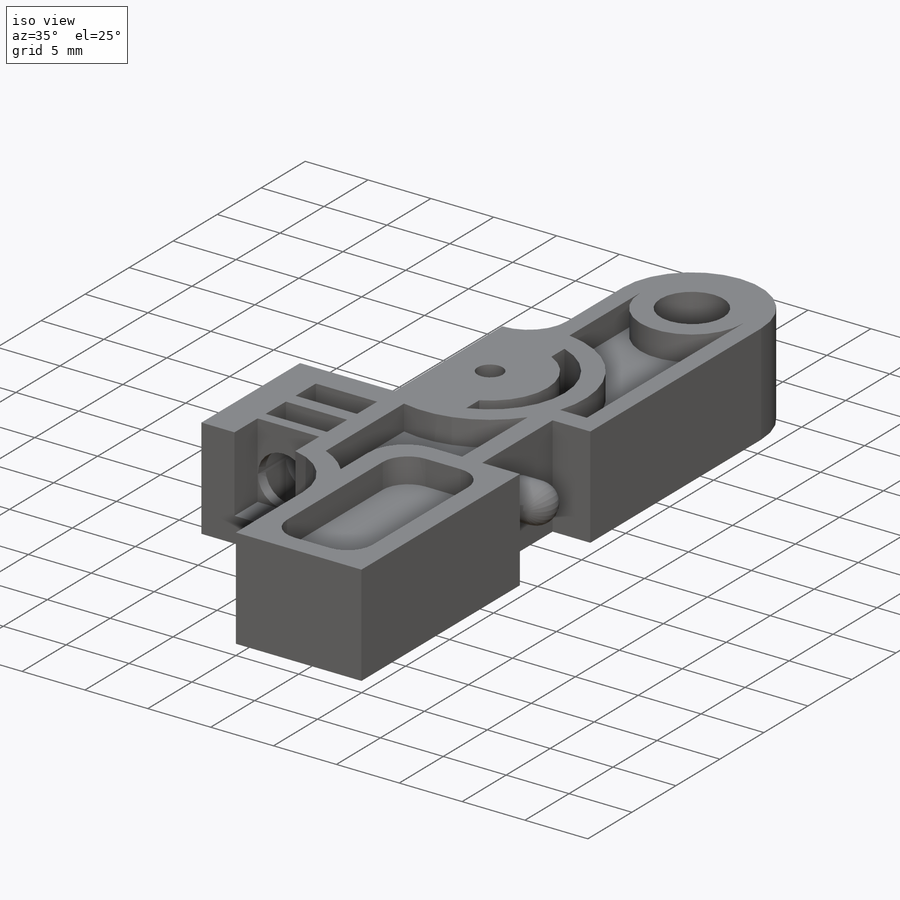
[diagram: iso view]
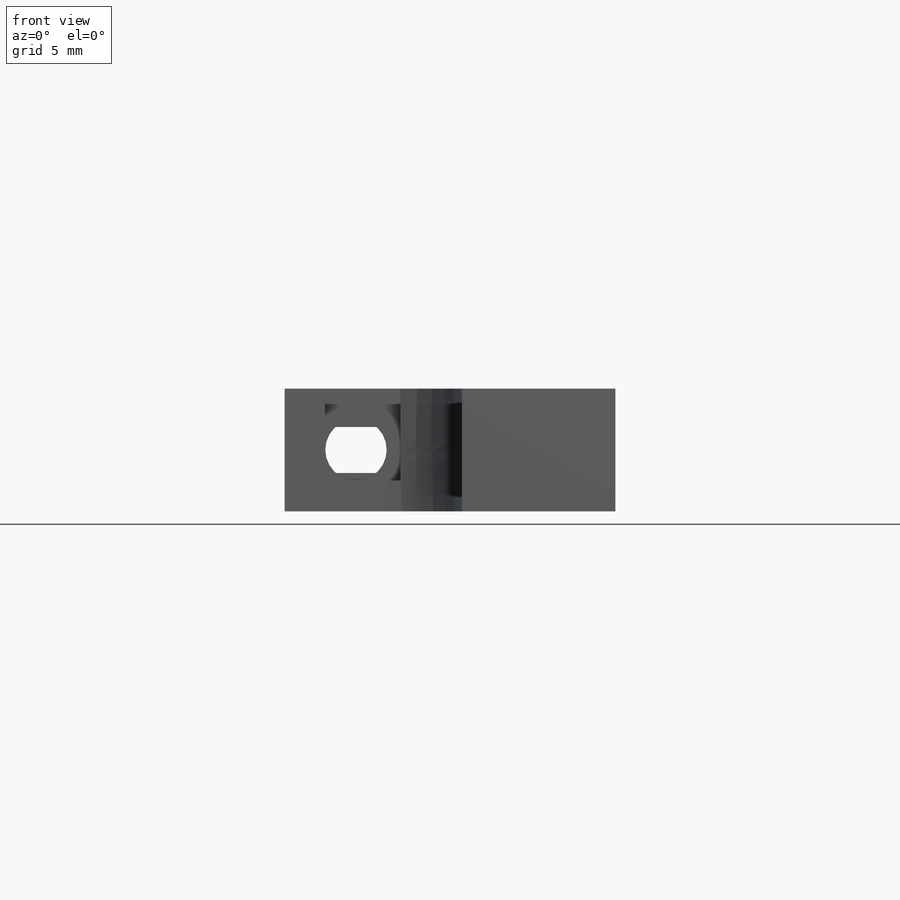
[diagram: front view]
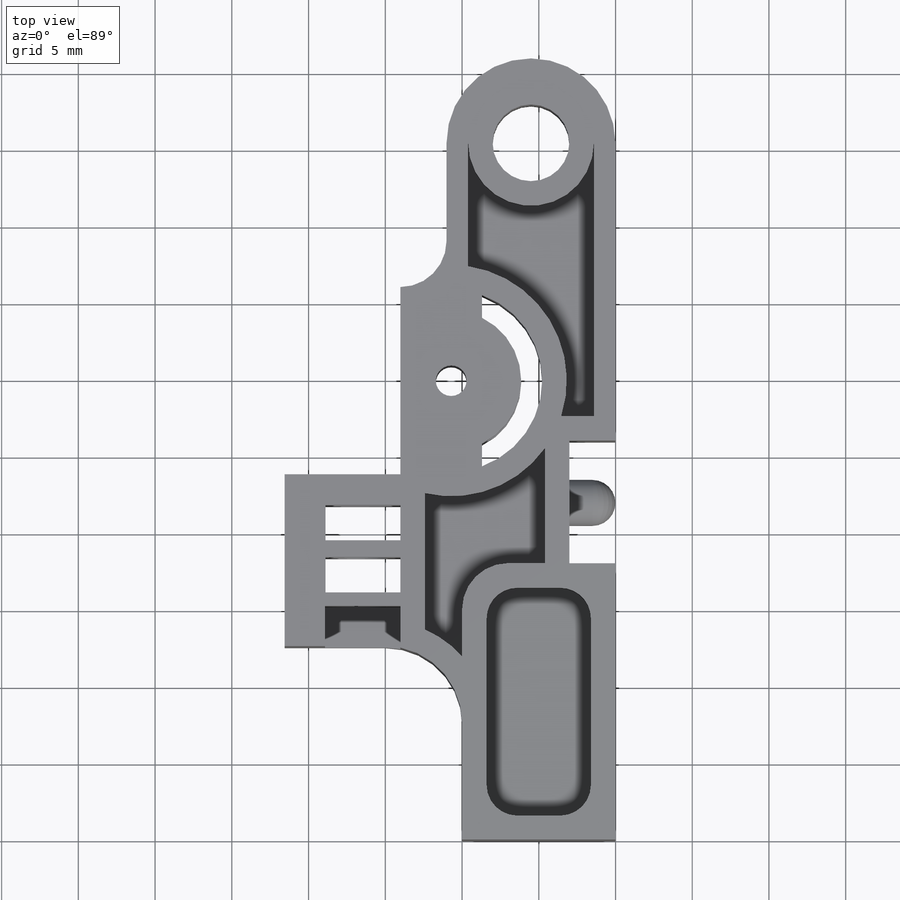
[diagram: top view]
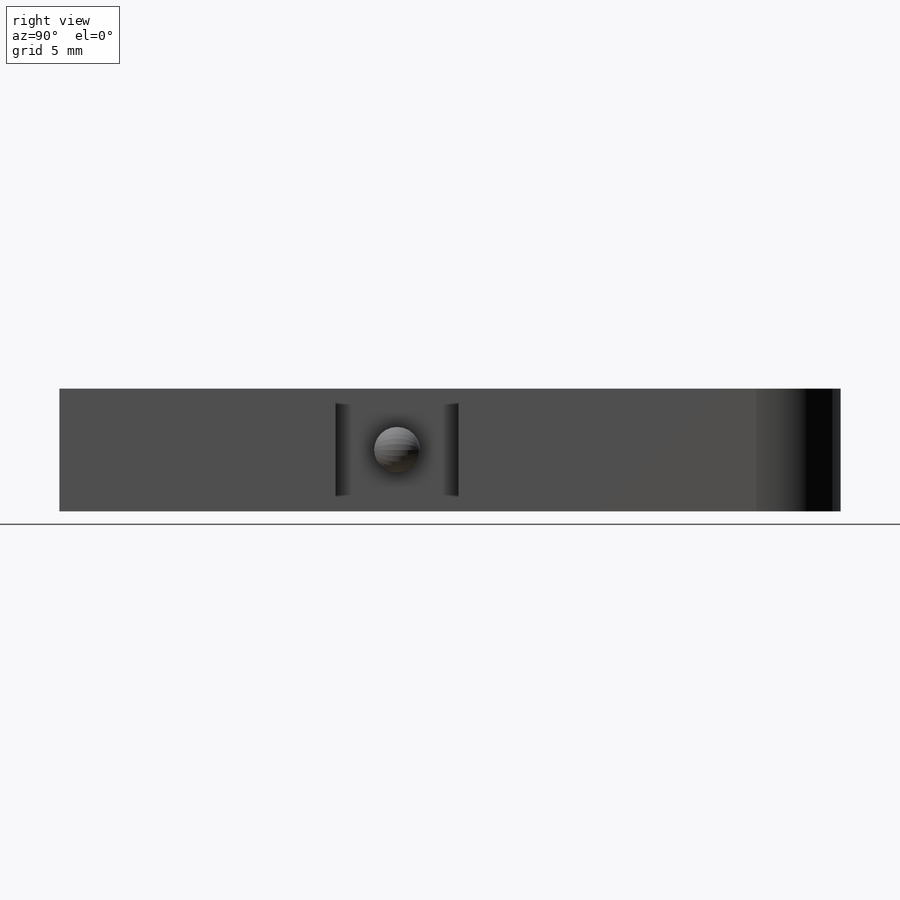
[diagram: right view]
SOLIDWORKS PART (.sldprt)
format: sldprt  version: not decoded by parser v0  size: 1,128,960 bytes
history: native  units: mm
features: sketch x16, cut_extrude x13, fillet x4, extrude x3, material x1 (+13 scaffold rows collapsed)
feature tree (50):
  scaffold x13  (default folders/planes/origin — collapsed)
  material  "Material <not specified>"
  sketch  "Sketch1"  dims[D1=21.55mm D2=50.9mm]
  extrude  "Boss-Extrude1"  Depth=8mm
  sketch  "Sketch2"  dims[c1.D1=11.0mm c1.D2=14.2mm c1.D3=18.5mm c1.D4=24.8mm c1.D5=14.9mm c1.D6=12.2mm c1.D7=11.2mm c2.D2=18.0mm c2.D8=8.0mm c2.D9=3.0mm c2.D10=45.4mm c3.D10=~0.031831deg c4.D10=10.0mm]
  cut_extrude  "Cut-Extrude1"  Depth=10mm
  sketch  "Sketch4"  dims[D1=2.0mm D2=10.7mm]
  cut_extrude  "Cut-Extrude2"  Depth=10mm
  sketch  "Sketch5"  dims[D1=10.5mm]
  cut_extrude  "Cut-Extrude3"  Depth=4mm
  sketch  "Sketch6"
  cut_extrude  "Cut-Extrude4"  Depth=8mm
  sketch  "Sketch7"  dims[D1=5.0mm]
  cut_extrude  "Cut-Extrude5"  Depth=8mm
  sketch  "Sketch8"  dims[D1=3.0mm]
  extrude  "Boss-Extrude2"  [1 undecoded]
  fillet  "Fillet1"  Radius=1.5mm
  sketch  "Sketch9"  dims[D1=4.0mm D2=2.65mm]
  cut_extrude  "Cut-Extrude6"  [1 undecoded]
  fillet  "Fillet2"  Radius=5mm
  sketch  "Sketch10"  dims[D1=2.0mm D2=2.66mm D3=2.3mm D4=2.3mm D5=1.1mm]
  cut_extrude  "Cut-Extrude7"  Depth=8mm
  sketch  "Sketch11"
  cut_extrude  "Cut-Extrude8"  Depth=6mm
  sketch  "Sketch12"  dims[c1.D1=~5.932246mm c1.D2=~9.56024mm c2.D1=1.6mm c2.D2=1.6mm c2.D3=1.6mm c2.D4=1.4mm]
  cut_extrude  "Cut-Extrude9"  Depth=2mm
  sketch  "Sketch13"
  cut_extrude  "Cut-Extrude11"  Depth=2mm
  sketch  "Sketch14"  dims[c1.D3=5.0mm c1.D7=2.0mm c1.D1=1.6mm c1.D2=1.6mm c2.D3=1.6mm c2.D4=1.6mm c2.D5=1.6mm c2.D6=~13.182197mm c3.D4=1.6mm c3.D6=1.6mm c3.D8=1.6mm c3.D9=1.6mm]
  cut_extrude  "Cut-Extrude12"  Depth=2mm
  fillet  "Fillet3"  Radius=3mm
  fillet  "Fillet4"  Radius=2mm
  sketch  "Sketch15"  dims[D1=2.0mm D2=3.0mm]
  cut_extrude  "Cut-Extrude13"  Depth=2mm
  sketch  "Sketch16"  dims[c1.D1=2.0mm c1.D2=3.0mm c1.D3=3.0mm c1.D4=2.0mm c2.D2=3.0mm c2.D3=2.5mm c2.D4=2.5mm]
  cut_extrude  "Cut-Extrude14"  Depth=7mm
  sketch  "Sketch17"  dims[c1.D1=~3.201212mm c1.D2=4.0mm c2.D1=~3.201212mm]
  extrude  "Boss-Extrude3"  [1 undecoded]
decode coverage: 30 of 36 modeling features carry decoded parameters
note: ~ marks probable driven/reference dimensions
note: 3 parameter values undecoded
summary: no parameter record found for 3 features
note: suppression state not decoded; provenance and decode notes live in map.json
